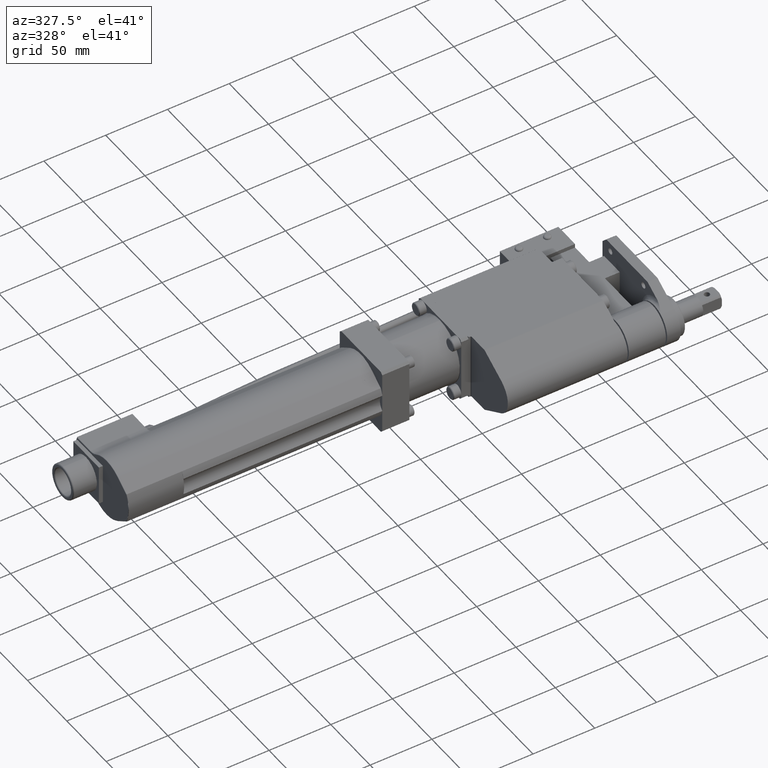
[diagram: clean part render]
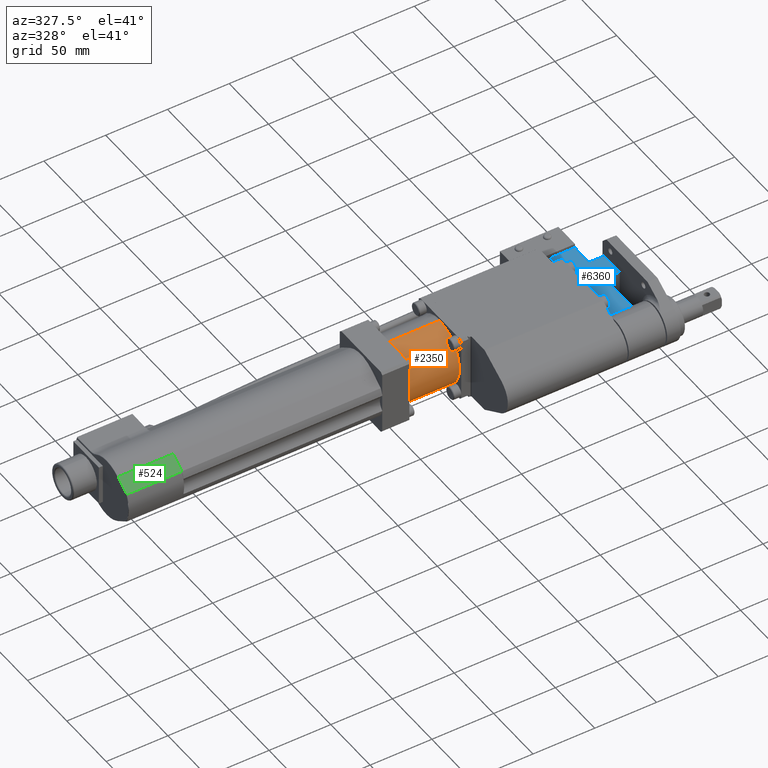
[diagram: same view with three faces highlighted in distinct colors, each labeled with its STEP entity id]
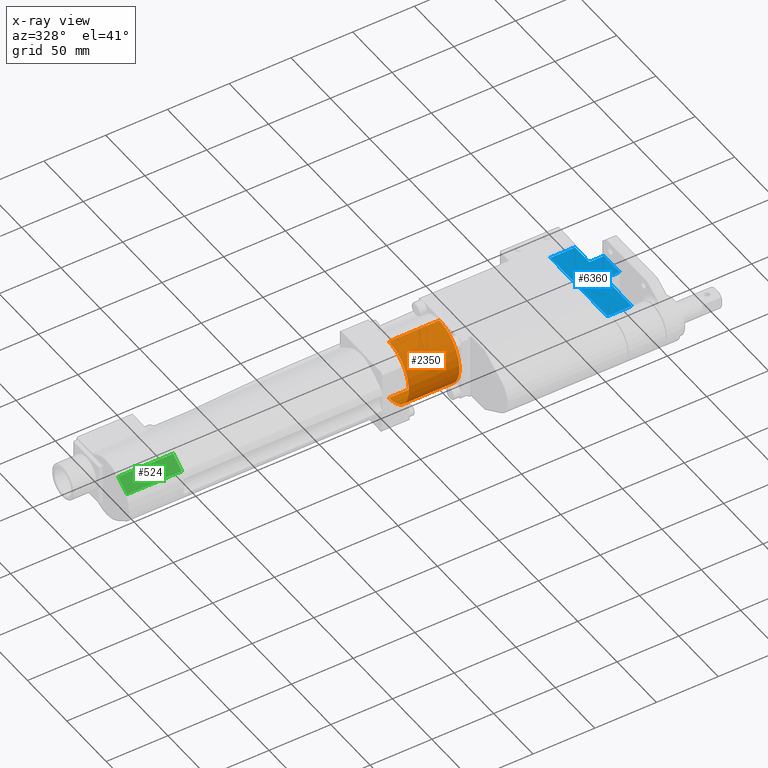
[diagram: x-ray of the same camera — body ghosted, the three highlighted faces saturated]
A machine part, auxiliary view with three faces highlighted in distinct colors.
The next image is the same camera in x-ray (body ghosted, the three faces saturated) — at least one of them is partly hidden behind the body in this view.
Their STEP definitions:

[orange] entity #2350 — the highlighted cylindrical surface (partial cylindrical patch) has radius 25.5 mm, axis along (1, -0, -0).
#353 = ORIENTED_EDGE ( 'NONE', *, *, #9875, .T. ) ;
#398 = EDGE_CURVE ( 'NONE', #10344, #3409, #4326, .T. ) ;
#721 = ORIENTED_EDGE ( 'NONE', *, *, #7995, .T. ) ;
#1008 = LINE ( 'NONE', #4245, #9112 ) ;
#1320 = DIRECTION ( 'NONE',  ( 1.000000000000000000, -0.0000000000000000000, -0.0000000000000000000 ) ) ;
#1547 = FACE_OUTER_BOUND ( 'NONE', #5376, .T. ) ;
#1616 = CARTESIAN_POINT ( 'NONE',  ( -189.5000000000000300, 56.70000000000000300, 3.252606517456513300E-015 ) ) ;
#1981 = ORIENTED_EDGE ( 'NONE', *, *, #2920, .T. ) ;
#2350 = ADVANCED_FACE ( 'NONE', ( #1547 ), #5501, .T. ) ;
#2463 = DIRECTION ( 'NONE',  ( 0.0000000000000000000, 0.0000000000000000000, 1.000000000000000000 ) ) ;
#2761 = ORIENTED_EDGE ( 'NONE', *, *, #398, .F. ) ;
#2920 = EDGE_CURVE ( 'NONE', #8377, #4044, #1008, .T. ) ;
#3254 = CARTESIAN_POINT ( 'NONE',  ( -148.5000000000000300, 56.70000000000000300, 3.252606517456513300E-015 ) ) ;
#3317 = CARTESIAN_POINT ( 'NONE',  ( -148.5000000000000300, 56.70000000000000300, 25.50000000000000400 ) ) ;
#3409 = VERTEX_POINT ( 'NONE', #3317 ) ;
#4044 = VERTEX_POINT ( 'NONE', #6584 ) ;
#4123 = DIRECTION ( 'NONE',  ( 0.0000000000000000000, 0.0000000000000000000, 1.000000000000000000 ) ) ;
#4245 = CARTESIAN_POINT ( 'NONE',  ( -190.0000000000000300, 56.70000000000000300, -25.49999999999999600 ) ) ;
#4326 = LINE ( 'NONE', #9786, #8286 ) ;
#4573 = CIRCLE ( 'NONE', #9624, 25.50000000000000000 ) ;
#4796 = CARTESIAN_POINT ( 'NONE',  ( -189.5000000000000300, 56.70000000000000300, 25.50000000000000400 ) ) ;
#5083 = DIRECTION ( 'NONE',  ( 1.000000000000000000, -0.0000000000000000000, -0.0000000000000000000 ) ) ;
#5376 = EDGE_LOOP ( 'NONE', ( #2761, #721, #1981, #353 ) ) ;
#5501 = CYLINDRICAL_SURFACE ( 'NONE', #8058, 25.50000000000000000 ) ;
#5873 = DIRECTION ( 'NONE',  ( 0.0000000000000000000, 0.0000000000000000000, -1.000000000000000000 ) ) ;
#6418 = CARTESIAN_POINT ( 'NONE',  ( -189.5000000000000300, 56.70000000000000300, -25.49999999999999600 ) ) ;
#6584 = CARTESIAN_POINT ( 'NONE',  ( -148.5000000000000300, 56.70000000000000300, -25.49999999999999600 ) ) ;
#6742 = CARTESIAN_POINT ( 'NONE',  ( -190.0000000000000300, 56.70000000000000300, 3.252606517456513300E-015 ) ) ;
#7560 = DIRECTION ( 'NONE',  ( 1.000000000000000000, -0.0000000000000000000, -0.0000000000000000000 ) ) ;
#7715 = AXIS2_PLACEMENT_3D ( 'NONE', #1616, #7560, #2463 ) ;
#7995 = EDGE_CURVE ( 'NONE', #10344, #8377, #8924, .T. ) ;
#8058 = AXIS2_PLACEMENT_3D ( 'NONE', #6742, #8393, #5873 ) ;
#8286 = VECTOR ( 'NONE', #1320, 1000.000000000000000 ) ;
#8377 = VERTEX_POINT ( 'NONE', #6418 ) ;
#8393 = DIRECTION ( 'NONE',  ( 1.000000000000000000, -0.0000000000000000000, -0.0000000000000000000 ) ) ;
#8924 = CIRCLE ( 'NONE', #7715, 25.50000000000000000 ) ;
#9112 = VECTOR ( 'NONE', #5083, 1000.000000000000000 ) ;
#9195 = DIRECTION ( 'NONE',  ( -1.000000000000000000, 0.0000000000000000000, 0.0000000000000000000 ) ) ;
#9624 = AXIS2_PLACEMENT_3D ( 'NONE', #3254, #9195, #4123 ) ;
#9786 = CARTESIAN_POINT ( 'NONE',  ( -190.0000000000000300, 56.70000000000000300, 25.50000000000000400 ) ) ;
#9875 = EDGE_CURVE ( 'NONE', #4044, #3409, #4573, .T. ) ;
#10344 = VERTEX_POINT ( 'NONE', #4796 ) ;

[blue] entity #6360 — the highlighted planar face has unit normal (0, 0, 1).
#220 = LINE ( 'NONE', #10633, #6717 ) ;
#342 = DIRECTION ( 'NONE',  ( 0.0000000000000000000, 1.000000000000000000, 0.0000000000000000000 ) ) ;
#624 = AXIS2_PLACEMENT_3D ( 'NONE', #7634, #2544, #8488 ) ;
#688 = EDGE_CURVE ( 'NONE', #2120, #7491, #1124, .T. ) ;
#727 = ORIENTED_EDGE ( 'NONE', *, *, #5989, .T. ) ;
#840 = CARTESIAN_POINT ( 'NONE',  ( -8.000000000000000000, 48.00000000000000000, 10.00000000000000000 ) ) ;
#954 = EDGE_CURVE ( 'NONE', #1654, #5368, #991, .T. ) ;
#991 = LINE ( 'NONE', #1154, #5212 ) ;
#1124 = LINE ( 'NONE', #840, #7882 ) ;
#1154 = CARTESIAN_POINT ( 'NONE',  ( -20.00000000000000000, 68.00000000000000000, 10.00000000000000000 ) ) ;
#1654 = VERTEX_POINT ( 'NONE', #7523 ) ;
#1709 = PLANE ( 'NONE',  #624 ) ;
#1887 = VECTOR ( 'NONE', #3727, 1000.000000000000000 ) ;
#2120 = VERTEX_POINT ( 'NONE', #9798 ) ;
#2126 = VECTOR ( 'NONE', #342, 1000.000000000000000 ) ;
#2411 = LINE ( 'NONE', #10497, #1887 ) ;
#2461 = ORIENTED_EDGE ( 'NONE', *, *, #6042, .T. ) ;
#2544 = DIRECTION ( 'NONE',  ( 0.0000000000000000000, 0.0000000000000000000, 1.000000000000000000 ) ) ;
#2985 = VERTEX_POINT ( 'NONE', #6892 ) ;
#3014 = ORIENTED_EDGE ( 'NONE', *, *, #4498, .T. ) ;
#3164 = EDGE_CURVE ( 'NONE', #10708, #7621, #7250, .T. ) ;
#3210 = CARTESIAN_POINT ( 'NONE',  ( -20.00000000000000000, 48.00000000000000000, 10.00000000000000000 ) ) ;
#3480 = CARTESIAN_POINT ( 'NONE',  ( -20.00000000000000000, 86.00000000000000000, 10.00000000000000000 ) ) ;
#3727 = DIRECTION ( 'NONE',  ( -1.000000000000000000, 0.0000000000000000000, 0.0000000000000000000 ) ) ;
#3798 = LINE ( 'NONE', #3210, #8326 ) ;
#3831 = DIRECTION ( 'NONE',  ( -1.000000000000000000, 0.0000000000000000000, 0.0000000000000000000 ) ) ;
#4095 = DIRECTION ( 'NONE',  ( 1.000000000000000000, 0.0000000000000000000, 0.0000000000000000000 ) ) ;
#4498 = EDGE_CURVE ( 'NONE', #2985, #2120, #3798, .T. ) ;
#5212 = VECTOR ( 'NONE', #7889, 1000.000000000000000 ) ;
#5368 = VERTEX_POINT ( 'NONE', #3480 ) ;
#5400 = CARTESIAN_POINT ( 'NONE',  ( -40.00000000000000700, 86.00000000000000000, 10.00000000000000000 ) ) ;
#5403 = CARTESIAN_POINT ( 'NONE',  ( -20.00000000000000000, 0.0000000000000000000, 10.00000000000000000 ) ) ;
#5441 = FACE_OUTER_BOUND ( 'NONE', #7879, .T. ) ;
#5459 = CARTESIAN_POINT ( 'NONE',  ( -40.00000000000000700, 86.00000000000000000, 10.00000000000000000 ) ) ;
#5486 = ORIENTED_EDGE ( 'NONE', *, *, #954, .T. ) ;
#5500 = CARTESIAN_POINT ( 'NONE',  ( -41.99999999999999300, 13.74772708486752200, 10.00000000000000000 ) ) ;
#5539 = DIRECTION ( 'NONE',  ( -1.000000000000000000, 0.0000000000000000000, 0.0000000000000000000 ) ) ;
#5624 = EDGE_CURVE ( 'NONE', #5368, #10190, #220, .T. ) ;
#5976 = EDGE_CURVE ( 'NONE', #10708, #2985, #10900, .T. ) ;
#5989 = EDGE_CURVE ( 'NONE', #7491, #1654, #2411, .T. ) ;
#6042 = EDGE_CURVE ( 'NONE', #10190, #7621, #8388, .T. ) ;
#6360 = ADVANCED_FACE ( 'NONE', ( #5441 ), #1709, .T. ) ;
#6717 = VECTOR ( 'NONE', #5539, 1000.000000000000000 ) ;
#6727 = VECTOR ( 'NONE', #3831, 1000.000000000000000 ) ;
#6787 = DIRECTION ( 'NONE',  ( 0.0000000000000000000, 1.000000000000000000, 0.0000000000000000000 ) ) ;
#6892 = CARTESIAN_POINT ( 'NONE',  ( -20.00000000000000000, 48.00000000000000000, 10.00000000000000000 ) ) ;
#7190 = DIRECTION ( 'NONE',  ( 1.613696256722611400E-016, -1.000000000000000000, 0.0000000000000000000 ) ) ;
#7250 = LINE ( 'NONE', #5500, #6727 ) ;
#7491 = VERTEX_POINT ( 'NONE', #9179 ) ;
#7523 = CARTESIAN_POINT ( 'NONE',  ( -20.00000000000000000, 68.00000000000000000, 10.00000000000000000 ) ) ;
#7621 = VERTEX_POINT ( 'NONE', #8510 ) ;
#7634 = CARTESIAN_POINT ( 'NONE',  ( 0.0000000000000000000, 0.0000000000000000000, 10.00000000000000000 ) ) ;
#7843 = CARTESIAN_POINT ( 'NONE',  ( -20.00000000000000000, 13.74772708486752200, 10.00000000000000000 ) ) ;
#7879 = EDGE_LOOP ( 'NONE', ( #10304, #9551, #3014, #10086, #727, #5486, #10087, #2461 ) ) ;
#7882 = VECTOR ( 'NONE', #6787, 1000.000000000000000 ) ;
#7889 = DIRECTION ( 'NONE',  ( 0.0000000000000000000, 1.000000000000000000, 0.0000000000000000000 ) ) ;
#8102 = VECTOR ( 'NONE', #7190, 1000.000000000000000 ) ;
#8326 = VECTOR ( 'NONE', #4095, 1000.000000000000000 ) ;
#8388 = LINE ( 'NONE', #5459, #8102 ) ;
#8488 = DIRECTION ( 'NONE',  ( 1.000000000000000000, 0.0000000000000000000, -0.0000000000000000000 ) ) ;
#8510 = CARTESIAN_POINT ( 'NONE',  ( -39.99999999999999300, 13.74772708486752200, 10.00000000000000000 ) ) ;
#9179 = CARTESIAN_POINT ( 'NONE',  ( -8.000000000000000000, 68.00000000000000000, 10.00000000000000000 ) ) ;
#9551 = ORIENTED_EDGE ( 'NONE', *, *, #5976, .T. ) ;
#9798 = CARTESIAN_POINT ( 'NONE',  ( -8.000000000000000000, 48.00000000000000000, 10.00000000000000000 ) ) ;
#10086 = ORIENTED_EDGE ( 'NONE', *, *, #688, .T. ) ;
#10087 = ORIENTED_EDGE ( 'NONE', *, *, #5624, .T. ) ;
#10190 = VERTEX_POINT ( 'NONE', #5400 ) ;
#10304 = ORIENTED_EDGE ( 'NONE', *, *, #3164, .F. ) ;
#10497 = CARTESIAN_POINT ( 'NONE',  ( -8.000000000000000000, 68.00000000000000000, 10.00000000000000000 ) ) ;
#10633 = CARTESIAN_POINT ( 'NONE',  ( -20.00000000000000000, 86.00000000000000000, 10.00000000000000000 ) ) ;
#10708 = VERTEX_POINT ( 'NONE', #7843 ) ;
#10900 = LINE ( 'NONE', #5403, #2126 ) ;

[green] entity #524 — the highlighted planar face has unit normal (0, 0.5736, -0.8192).
#158 = DIRECTION ( 'NONE',  ( 1.000000000000000000, -0.0000000000000000000, -0.0000000000000000000 ) ) ;
#447 = AXIS2_PLACEMENT_3D ( 'NONE', #8169, #7365, #2261 ) ;
#454 = FACE_OUTER_BOUND ( 'NONE', #4471, .T. ) ;
#524 = ADVANCED_FACE ( 'NONE', ( #454 ), #5650, .F. ) ;
#607 = CARTESIAN_POINT ( 'NONE',  ( -417.5000000000000000, 42.64737730939920400, 20.06922508508019100 ) ) ;
#723 = LINE ( 'NONE', #10279, #7762 ) ;
#1383 = ORIENTED_EDGE ( 'NONE', *, *, #5668, .T. ) ;
#1427 = EDGE_CURVE ( 'NONE', #4361, #2597, #3200, .T. ) ;
#1934 = CARTESIAN_POINT ( 'NONE',  ( -373.0000000000000000, 31.54340951999869700, 12.29414313490402600 ) ) ;
#2261 = DIRECTION ( 'NONE',  ( 0.0000000000000000000, 0.8191520442889872500, 0.5735764363510524900 ) ) ;
#2597 = VERTEX_POINT ( 'NONE', #6798 ) ;
#2921 = VECTOR ( 'NONE', #5081, 1000.000000000000000 ) ;
#3200 = LINE ( 'NONE', #3373, #2921 ) ;
#3373 = CARTESIAN_POINT ( 'NONE',  ( -373.0000000000000000, 31.54340951999869700, 12.29414313490402400 ) ) ;
#3503 = CARTESIAN_POINT ( 'NONE',  ( -418.0000000000000000, 42.64737730939920400, 20.06922508508019100 ) ) ;
#3871 = CARTESIAN_POINT ( 'NONE',  ( -418.0000000000000000, 31.54340951999869700, 12.29414313490402600 ) ) ;
#4361 = VERTEX_POINT ( 'NONE', #1934 ) ;
#4403 = LINE ( 'NONE', #3503, #8650 ) ;
#4471 = EDGE_LOOP ( 'NONE', ( #8096, #7940, #1383, #5932 ) ) ;
#5073 = VECTOR ( 'NONE', #9814, 1000.000000000000000 ) ;
#5081 = DIRECTION ( 'NONE',  ( 0.0000000000000000000, 0.8191520442889873600, 0.5735764363510524900 ) ) ;
#5650 = PLANE ( 'NONE',  #447 ) ;
#5668 = EDGE_CURVE ( 'NONE', #8579, #4361, #7336, .T. ) ;
#5932 = ORIENTED_EDGE ( 'NONE', *, *, #1427, .T. ) ;
#6475 = EDGE_CURVE ( 'NONE', #8642, #2597, #4403, .T. ) ;
#6798 = CARTESIAN_POINT ( 'NONE',  ( -373.0000000000000000, 42.64737730939920400, 20.06922508508019100 ) ) ;
#7285 = CARTESIAN_POINT ( 'NONE',  ( -417.5000000000000600, 31.54340951999869700, 12.29414313490402600 ) ) ;
#7336 = LINE ( 'NONE', #3871, #5073 ) ;
#7365 = DIRECTION ( 'NONE',  ( 0.0000000000000000000, 0.5735764363510526000, -0.8191520442889873600 ) ) ;
#7762 = VECTOR ( 'NONE', #8529, 999.9999999999998900 ) ;
#7940 = ORIENTED_EDGE ( 'NONE', *, *, #10048, .T. ) ;
#8096 = ORIENTED_EDGE ( 'NONE', *, *, #6475, .F. ) ;
#8169 = CARTESIAN_POINT ( 'NONE',  ( -418.0000000000000000, 31.54340951999869700, 12.29414313490402400 ) ) ;
#8529 = DIRECTION ( 'NONE',  ( 0.0000000000000000000, -0.8191520442889873600, -0.5735764363510526000 ) ) ;
#8579 = VERTEX_POINT ( 'NONE', #7285 ) ;
#8642 = VERTEX_POINT ( 'NONE', #607 ) ;
#8650 = VECTOR ( 'NONE', #158, 1000.000000000000000 ) ;
#9814 = DIRECTION ( 'NONE',  ( 1.000000000000000000, -0.0000000000000000000, -0.0000000000000000000 ) ) ;
#10048 = EDGE_CURVE ( 'NONE', #8642, #8579, #723, .T. ) ;
#10279 = CARTESIAN_POINT ( 'NONE',  ( -417.5000000000000000, 31.54340951999869000, 12.29414313490401900 ) ) ;